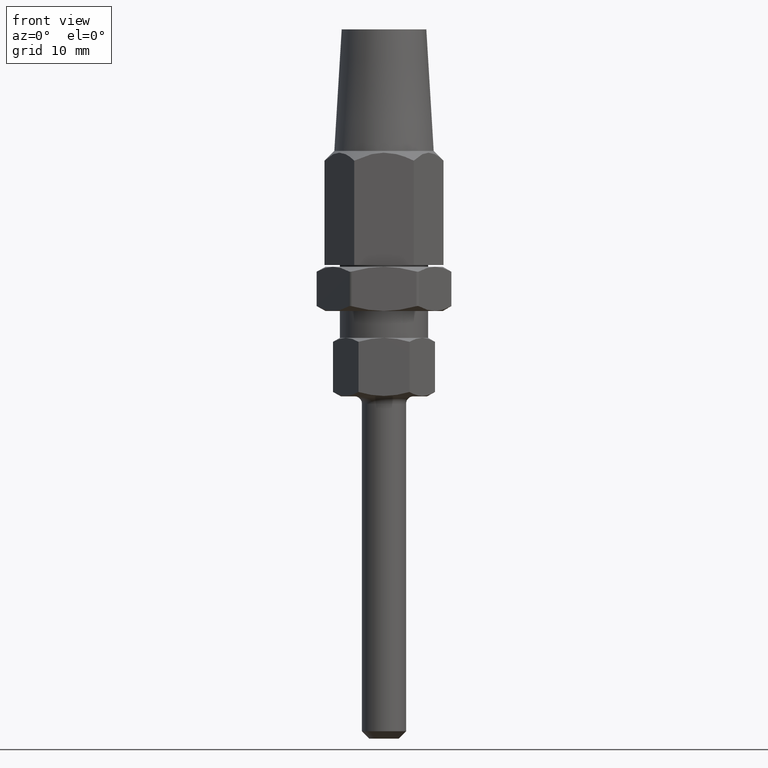
[diagram: clean part render]
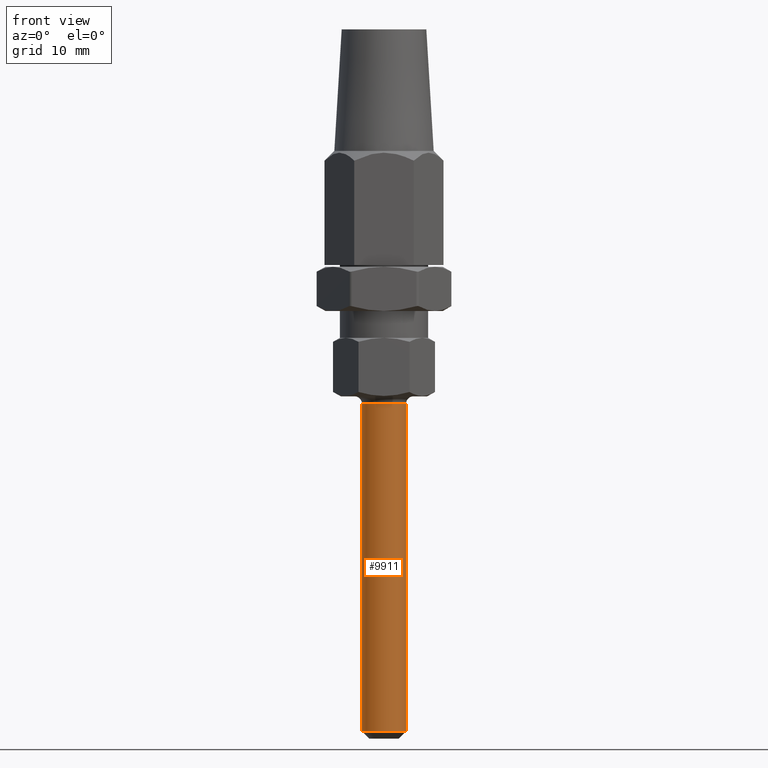
[diagram: same view with one face highlighted and labeled with its STEP entity id]
A machine part, front view. The second image highlights one B-rep face of the part: STEP entity #9911.
In plain terms, the highlighted cylindrical surface (edge-blend (fillet) strip) has radius 3 mm, axis along (0, 0, 1).
Its self-contained STEP definition (entity closure, byte-faithful):
#62 = ORIENTED_EDGE ( 'NONE', *, *, #207, .T. ) ;
#207 = EDGE_CURVE ( 'NONE', #5870, #8700, #6769, .T. ) ;
#555 = CIRCLE ( 'NONE', #11966, 3.000000000000000400 ) ;
#1002 = CARTESIAN_POINT ( 'NONE',  ( 3.000000000000000400, 0.0000000000000000000, -50.50000000000000000 ) ) ;
#1553 = DIRECTION ( 'NONE',  ( -1.000000000000000000, 0.0000000000000000000, 0.0000000000000000000 ) ) ;
#2115 = DIRECTION ( 'NONE',  ( -0.0000000000000000000, -0.0000000000000000000, 1.000000000000000000 ) ) ;
#2518 = EDGE_CURVE ( 'NONE', #6206, #7455, #555, .T. ) ;
#2835 = AXIS2_PLACEMENT_3D ( 'NONE', #10318, #2115, #9179 ) ;
#2839 = VECTOR ( 'NONE', #13884, 1000.000000000000000 ) ;
#4160 = CARTESIAN_POINT ( 'NONE',  ( 0.0000000000000000000, 0.0000000000000000000, -49.50000000000003600 ) ) ;
#5062 = AXIS2_PLACEMENT_3D ( 'NONE', #5836, #5710, #12508 ) ;
#5214 = DIRECTION ( 'NONE',  ( -0.0000000000000000000, -0.0000000000000000000, 1.000000000000000000 ) ) ;
#5460 = DIRECTION ( 'NONE',  ( 0.0000000000000000000, 0.0000000000000000000, 1.000000000000000000 ) ) ;
#5710 = DIRECTION ( 'NONE',  ( -0.0000000000000000000, 0.0000000000000000000, -1.000000000000000000 ) ) ;
#5836 = CARTESIAN_POINT ( 'NONE',  ( 0.0000000000000000000, 0.0000000000000000000, -5.000000000000004400 ) ) ;
#5870 = VERTEX_POINT ( 'NONE', #9359 ) ;
#5992 = CARTESIAN_POINT ( 'NONE',  ( 3.000000000000000400, 0.0000000000000000000, -49.50000000000003600 ) ) ;
#6163 = CARTESIAN_POINT ( 'NONE',  ( -3.000000000000000400, 3.673940397442059900E-016, -5.000000000000004400 ) ) ;
#6206 = VERTEX_POINT ( 'NONE', #12907 ) ;
#6365 = ORIENTED_EDGE ( 'NONE', *, *, #2518, .T. ) ;
#6769 = CIRCLE ( 'NONE', #5062, 3.000000000000000400 ) ;
#7455 = VERTEX_POINT ( 'NONE', #5992 ) ;
#8274 = FACE_OUTER_BOUND ( 'NONE', #15623, .T. ) ;
#8503 = ORIENTED_EDGE ( 'NONE', *, *, #14821, .T. ) ;
#8526 = CARTESIAN_POINT ( 'NONE',  ( -3.000000000000000400, 3.673940397442059900E-016, -50.50000000000000000 ) ) ;
#8700 = VERTEX_POINT ( 'NONE', #6163 ) ;
#8961 = CYLINDRICAL_SURFACE ( 'NONE', #2835, 3.000000000000000400 ) ;
#9179 = DIRECTION ( 'NONE',  ( 1.000000000000000000, 0.0000000000000000000, 0.0000000000000000000 ) ) ;
#9359 = CARTESIAN_POINT ( 'NONE',  ( 3.000000000000000400, 0.0000000000000000000, -5.000000000000004400 ) ) ;
#9911 = ADVANCED_FACE ( 'NONE', ( #8274 ), #8961, .T. ) ;
#10318 = CARTESIAN_POINT ( 'NONE',  ( 0.0000000000000000000, 0.0000000000000000000, -50.50000000000000000 ) ) ;
#11595 = ORIENTED_EDGE ( 'NONE', *, *, #15005, .F. ) ;
#11966 = AXIS2_PLACEMENT_3D ( 'NONE', #4160, #5460, #1553 ) ;
#12508 = DIRECTION ( 'NONE',  ( 1.000000000000000000, 0.0000000000000000000, 0.0000000000000000000 ) ) ;
#12907 = CARTESIAN_POINT ( 'NONE',  ( -3.000000000000000400, 3.673940397442059900E-016, -49.50000000000003600 ) ) ;
#13354 = LINE ( 'NONE', #1002, #15035 ) ;
#13884 = DIRECTION ( 'NONE',  ( -0.0000000000000000000, -0.0000000000000000000, 1.000000000000000000 ) ) ;
#14821 = EDGE_CURVE ( 'NONE', #7455, #5870, #13354, .T. ) ;
#15005 = EDGE_CURVE ( 'NONE', #6206, #8700, #17381, .T. ) ;
#15035 = VECTOR ( 'NONE', #5214, 1000.000000000000000 ) ;
#15623 = EDGE_LOOP ( 'NONE', ( #11595, #6365, #8503, #62 ) ) ;
#17381 = LINE ( 'NONE', #8526, #2839 ) ;